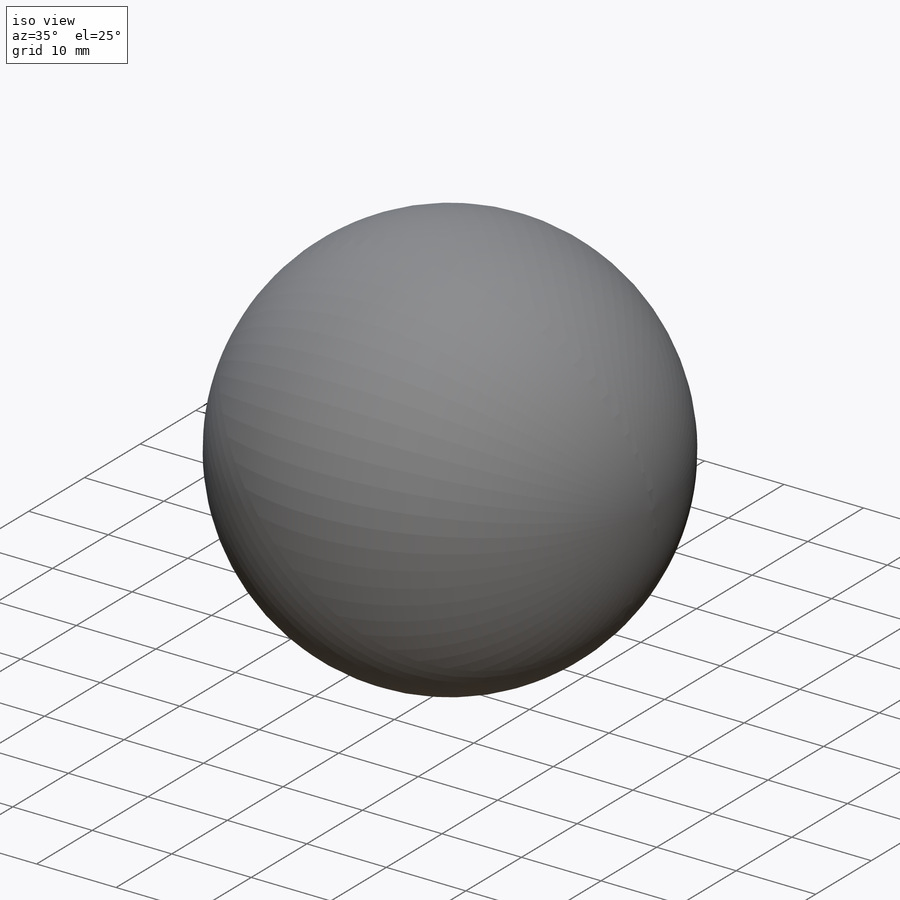
[diagram: iso view]
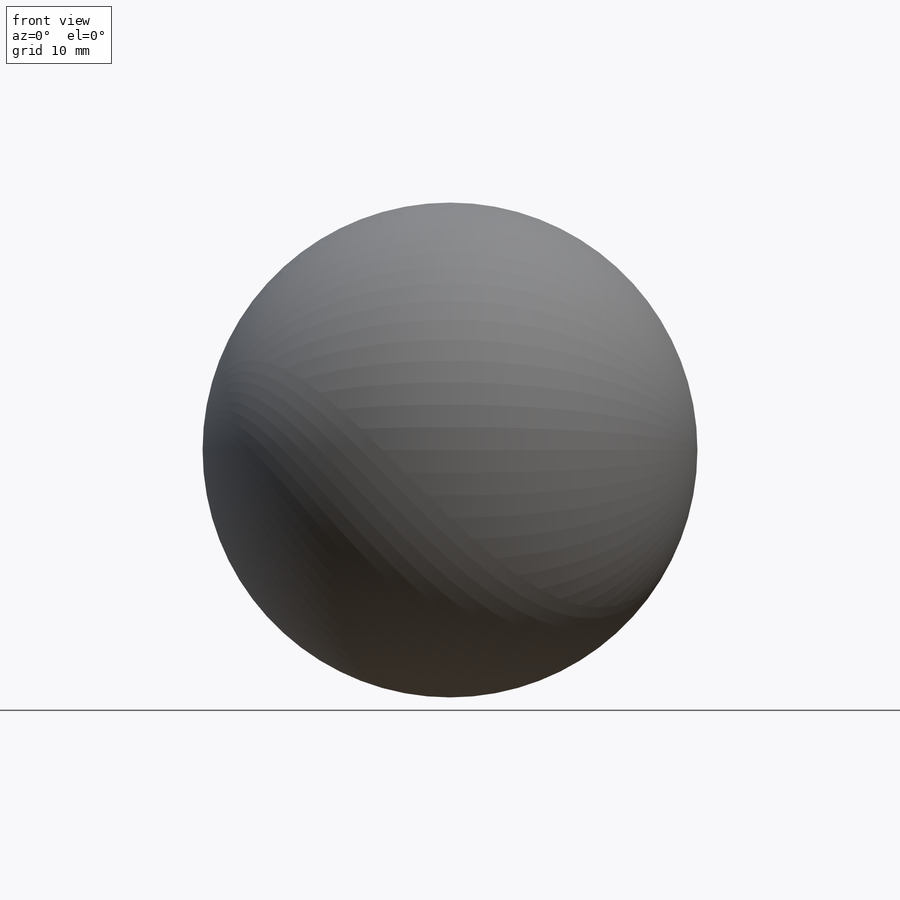
[diagram: front view]
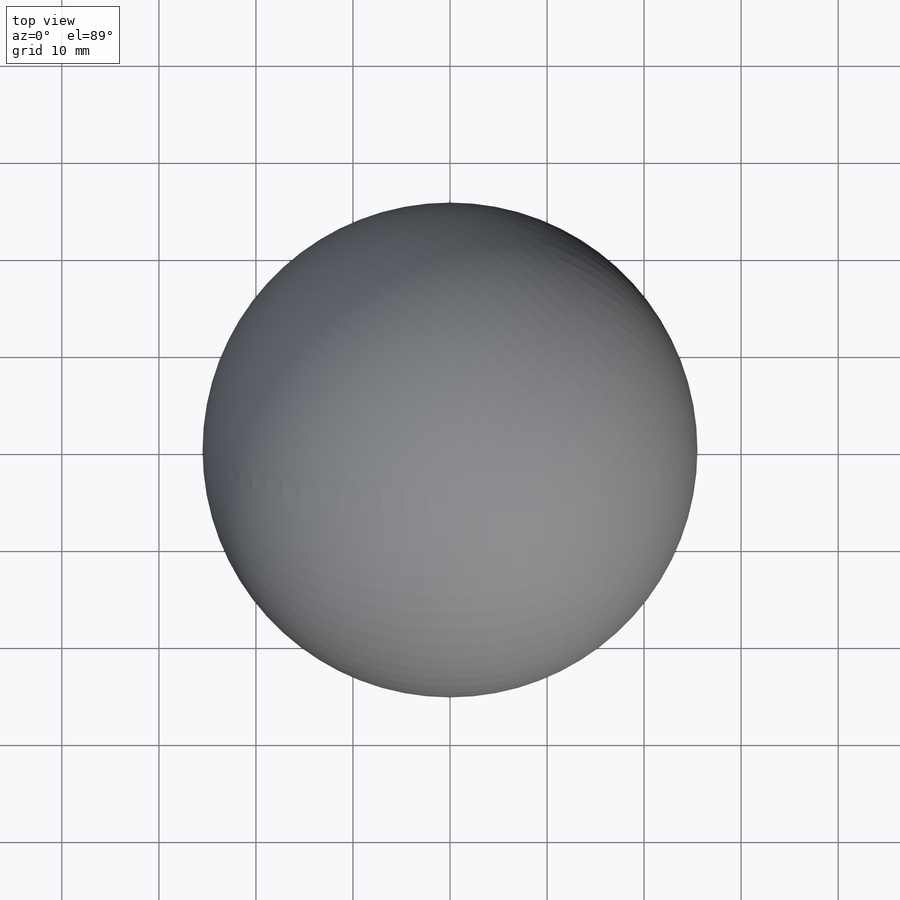
[diagram: top view]
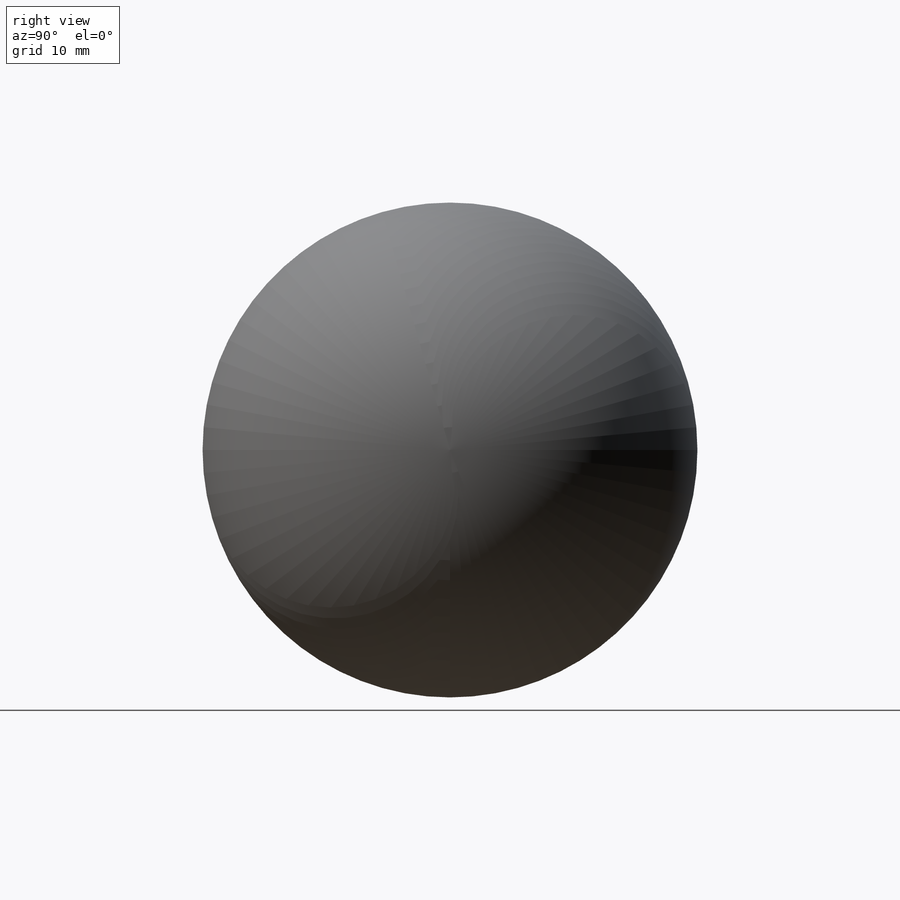
[diagram: right view]
SOLIDWORKS PART (.sldprt)
format: sldprt  version: not decoded by parser v0  size: 1,404,416 bytes
history: native  units: mm
features: sketch x11, plane x3, fillet x2, material x1, revolve x1 + 2 further entries (+9 scaffold rows collapsed)
feature tree (29):
  scaffold x9  (default folders/planes/origin — collapsed)
  material  "Glas"
  plane  "Ebene vorne"
  plane  "Ebene oben"
  plane  "Ebene rechts"
  "Y"
  "Z"
  sketch  "Skizze1"  dims[D1=10.0mm D2=50.0mm D3=0.5mm]
  revolve  "Rotation1"  Angle=360deg
  sketch  "3D-Skizze1"  dims[D1=1.0mm D2=0.5mm D3=4.5mm Ausformung2=0.0deg]
  sketch  "3D-Skizze1<10>"  dims[Ausformung3=0.0deg]
  sketch  "3D-Skizze1<11>"  dims[Ausformung4=0.0deg]
  sketch  "3D-Skizze1<12>"  dims[Ausformung5=0.0deg]
  sketch  "3D-Skizze1<13>"  dims[Ausformung6=0.0deg]
  sketch  "3D-Skizze1<15>"  dims[Ausformung7=0.0deg]
  sketch  "3D-Skizze1<16>"  dims[Ausformung8=0.0deg]
  sketch  "3D-Skizze1<17>"  dims[Ausformung9=0.0deg]
  sketch  "3D-Skizze1<18>"  dims[Ausformung10=0.0deg]
  sketch  "3D-Skizze1<19>"
  fillet  "Verrundung1"  Radius=2.7mm
  fillet  "Verrundung2"  Radius=2mm
decode coverage: 13 of 14 modeling features carry decoded parameters; 2 rows unclassified (native names shown)
note: suppression state not decoded; provenance and decode notes live in map.json
